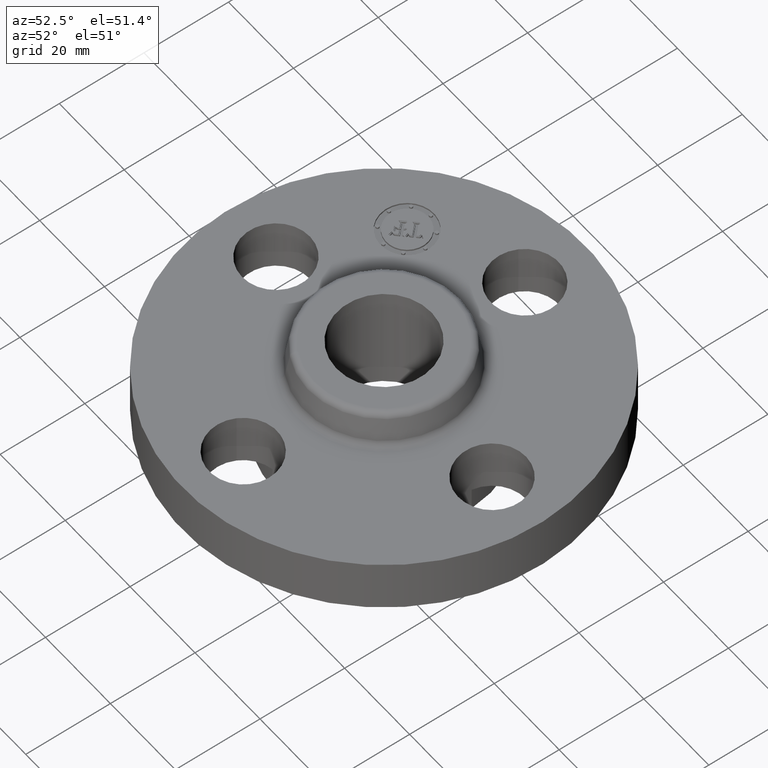
[diagram: clean part render]
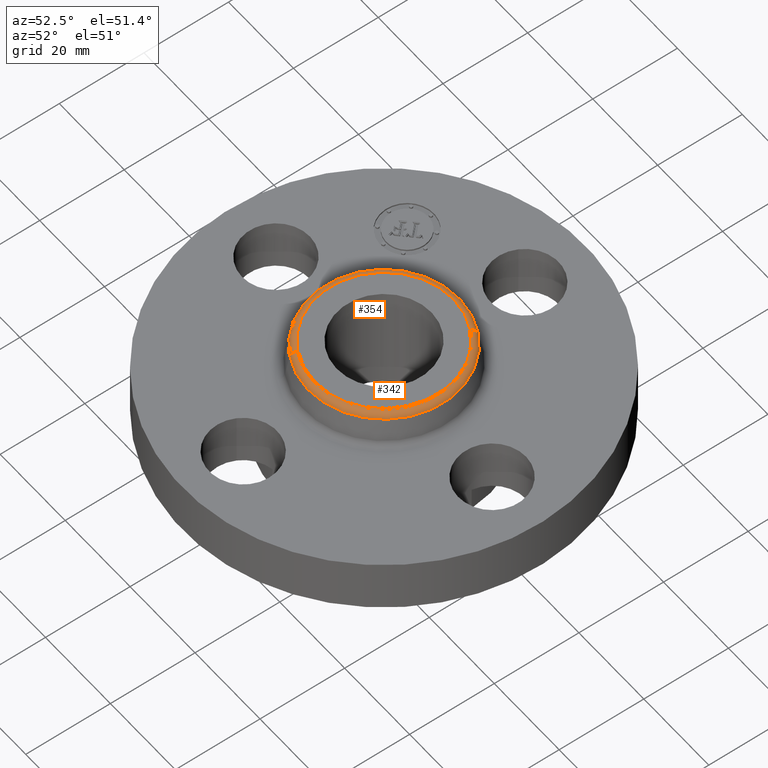
[diagram: same view with one multi-face feature highlighted, each face labeled with its STEP entity id]
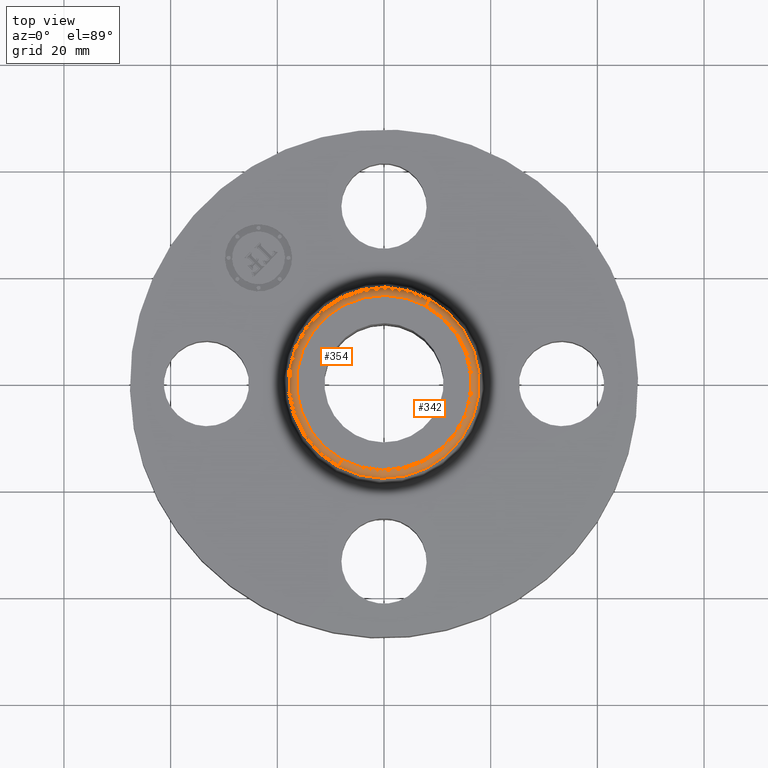
[diagram: same view with one multi-face feature highlighted, each face labeled with its STEP entity id]
A machine part, auxiliary view. The highlighted faces form ONE feature: a constant-radius fillet chain: 2 tangent blend faces with common blend radius 1.524 mm. The faces share edges in the B-rep.
A second angle (top view) of the same feature is appended — it is thin or edge-on in the first view.
Their STEP definitions:
[1] entity #354 (Torus):
#302=AXIS2_PLACEMENT_3D('Circle Axis2P3D',#300,#301,$) ;
#315=AXIS2_PLACEMENT_3D('Torus Axis2P3D',#312,#313,#314) ;
#319=AXIS2_PLACEMENT_3D('Circle Axis2P3D',#317,#318,$) ;
#333=AXIS2_PLACEMENT_3D('Circle Axis2P3D',#331,#332,$) ;
#345=AXIS2_PLACEMENT_3D('Circle Axis2P3D',#343,#344,$) ;
#278=CARTESIAN_POINT('Vertex',(0.337554471756,0.617889315958,0.760418890663)) ;
#285=CARTESIAN_POINT('Vertex',(-0.337554471756,-0.617889315958,0.760418890663)) ;
#300=CARTESIAN_POINT('Axis2P3D Location',(0.,0.,0.760418890663)) ;
#312=CARTESIAN_POINT('Axis2P3D Location',(0.,0.,0.750000000003)) ;
#317=CARTESIAN_POINT('Axis2P3D Location',(0.309225952511,0.566034309307,0.750000000003)) ;
#321=CARTESIAN_POINT('Vertex',(0.309225952511,0.566034309307,0.810000000003)) ;
#328=CARTESIAN_POINT('Vertex',(-0.309225952511,-0.566034309307,0.810000000003)) ;
#331=CARTESIAN_POINT('Axis2P3D Location',(-0.309225952511,-0.566034309307,0.750000000003)) ;
#343=CARTESIAN_POINT('Axis2P3D Location',(0.,0.,0.810000000003)) ;
#301=DIRECTION('Axis2P3D Direction',(0.,0.,-0.0393700787402)) ;
#313=DIRECTION('Axis2P3D Direction',(0.,0.,-0.0393700787402)) ;
#314=DIRECTION('Axis2P3D XDirection',(-0.0188750212049,-0.0345504945626,0.)) ;
#318=DIRECTION('Axis2P3D Direction',(-0.0345504945626,0.0188750212049,0.)) ;
#332=DIRECTION('Axis2P3D Direction',(0.0345504945626,-0.0188750212049,0.)) ;
#344=DIRECTION('Axis2P3D Direction',(0.,0.,-0.0393700787402)) ;
#349=ORIENTED_EDGE('',*,*,#304,.F.) ;
#350=ORIENTED_EDGE('',*,*,#335,.T.) ;
#351=ORIENTED_EDGE('',*,*,#347,.T.) ;
#352=ORIENTED_EDGE('',*,*,#323,.F.) ;
#354=ADVANCED_FACE('PartBody',(#353),#316,.T.) ;
#303=CIRCLE('generated circle',#302,0.704081123293) ;
#320=CIRCLE('generated circle',#319,0.0600000000002) ;
#334=CIRCLE('generated circle',#333,0.0600000000002) ;
#346=CIRCLE('generated circle',#345,0.644992658112) ;
#316=TOROIDAL_SURFACE('homeo Torus',#315,0.644992658112,0.0600000000002) ;
#304=EDGE_CURVE('',#286,#279,#303,.T.) ;
#323=EDGE_CURVE('',#279,#322,#320,.F.) ;
#335=EDGE_CURVE('',#286,#329,#334,.F.) ;
#347=EDGE_CURVE('',#329,#322,#346,.T.) ;
#348=EDGE_LOOP('',(#349,#350,#351,#352)) ;
#353=FACE_OUTER_BOUND('',#348,.T.) ;
#279=VERTEX_POINT('',#278) ;
#286=VERTEX_POINT('',#285) ;
#322=VERTEX_POINT('',#321) ;
#329=VERTEX_POINT('',#328) ;
[2] entity #342 (Torus):
#283=AXIS2_PLACEMENT_3D('Circle Axis2P3D',#281,#282,$) ;
#315=AXIS2_PLACEMENT_3D('Torus Axis2P3D',#312,#313,#314) ;
#319=AXIS2_PLACEMENT_3D('Circle Axis2P3D',#317,#318,$) ;
#326=AXIS2_PLACEMENT_3D('Circle Axis2P3D',#324,#325,$) ;
#333=AXIS2_PLACEMENT_3D('Circle Axis2P3D',#331,#332,$) ;
#278=CARTESIAN_POINT('Vertex',(0.337554471756,0.617889315958,0.760418890663)) ;
#281=CARTESIAN_POINT('Axis2P3D Location',(0.,0.,0.760418890663)) ;
#285=CARTESIAN_POINT('Vertex',(-0.337554471756,-0.617889315958,0.760418890663)) ;
#312=CARTESIAN_POINT('Axis2P3D Location',(0.,0.,0.750000000003)) ;
#317=CARTESIAN_POINT('Axis2P3D Location',(0.309225952511,0.566034309307,0.750000000003)) ;
#321=CARTESIAN_POINT('Vertex',(0.309225952511,0.566034309307,0.810000000003)) ;
#324=CARTESIAN_POINT('Axis2P3D Location',(0.,0.,0.810000000003)) ;
#328=CARTESIAN_POINT('Vertex',(-0.309225952511,-0.566034309307,0.810000000003)) ;
#331=CARTESIAN_POINT('Axis2P3D Location',(-0.309225952511,-0.566034309307,0.750000000003)) ;
#282=DIRECTION('Axis2P3D Direction',(0.,0.,-0.0393700787402)) ;
#313=DIRECTION('Axis2P3D Direction',(0.,0.,-0.0393700787402)) ;
#314=DIRECTION('Axis2P3D XDirection',(-0.0188750212049,-0.0345504945626,0.)) ;
#318=DIRECTION('Axis2P3D Direction',(-0.0345504945626,0.0188750212049,0.)) ;
#325=DIRECTION('Axis2P3D Direction',(0.,0.,-0.0393700787402)) ;
#332=DIRECTION('Axis2P3D Direction',(0.0345504945626,-0.0188750212049,0.)) ;
#337=ORIENTED_EDGE('',*,*,#287,.F.) ;
#338=ORIENTED_EDGE('',*,*,#323,.T.) ;
#339=ORIENTED_EDGE('',*,*,#330,.T.) ;
#340=ORIENTED_EDGE('',*,*,#335,.F.) ;
#342=ADVANCED_FACE('PartBody',(#341),#316,.T.) ;
#284=CIRCLE('generated circle',#283,0.704081123293) ;
#320=CIRCLE('generated circle',#319,0.0600000000002) ;
#327=CIRCLE('generated circle',#326,0.644992658112) ;
#334=CIRCLE('generated circle',#333,0.0600000000002) ;
#316=TOROIDAL_SURFACE('homeo Torus',#315,0.644992658112,0.0600000000002) ;
#287=EDGE_CURVE('',#279,#286,#284,.T.) ;
#323=EDGE_CURVE('',#279,#322,#320,.F.) ;
#330=EDGE_CURVE('',#322,#329,#327,.T.) ;
#335=EDGE_CURVE('',#286,#329,#334,.F.) ;
#336=EDGE_LOOP('',(#337,#338,#339,#340)) ;
#341=FACE_OUTER_BOUND('',#336,.T.) ;
#279=VERTEX_POINT('',#278) ;
#286=VERTEX_POINT('',#285) ;
#322=VERTEX_POINT('',#321) ;
#329=VERTEX_POINT('',#328) ;